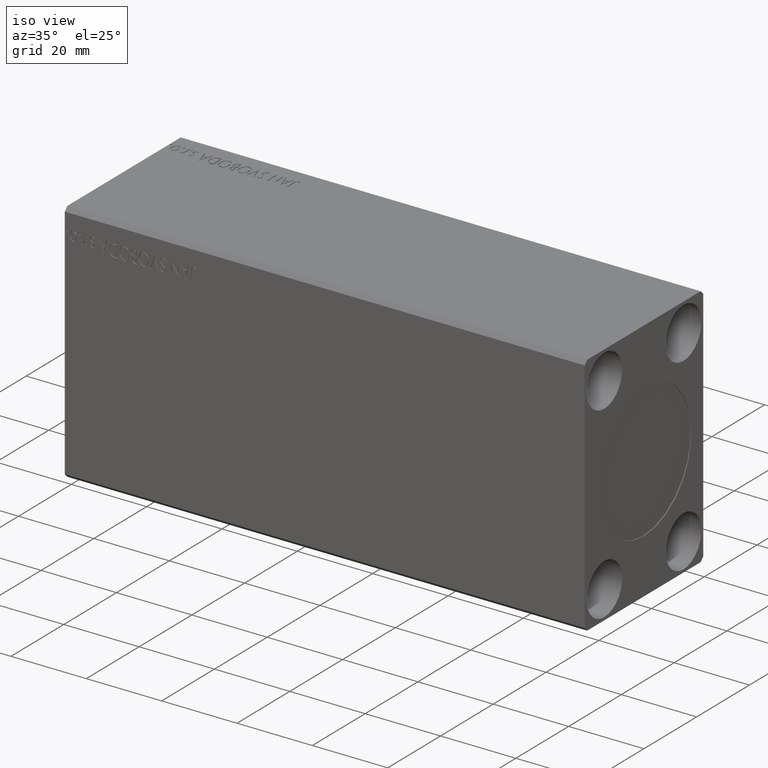
[diagram: clean part render]
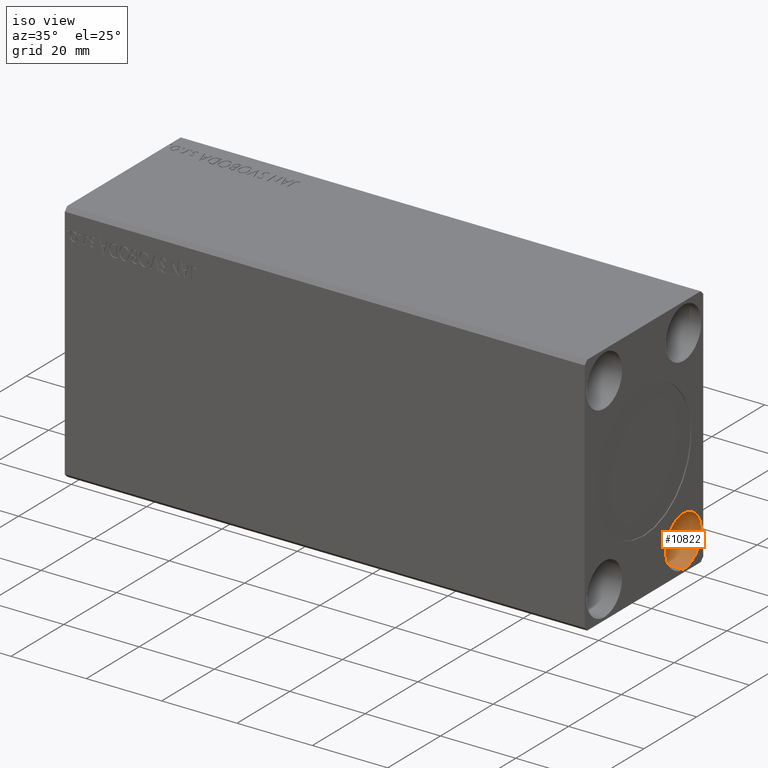
[diagram: same view with one face highlighted and labeled with its STEP entity id]
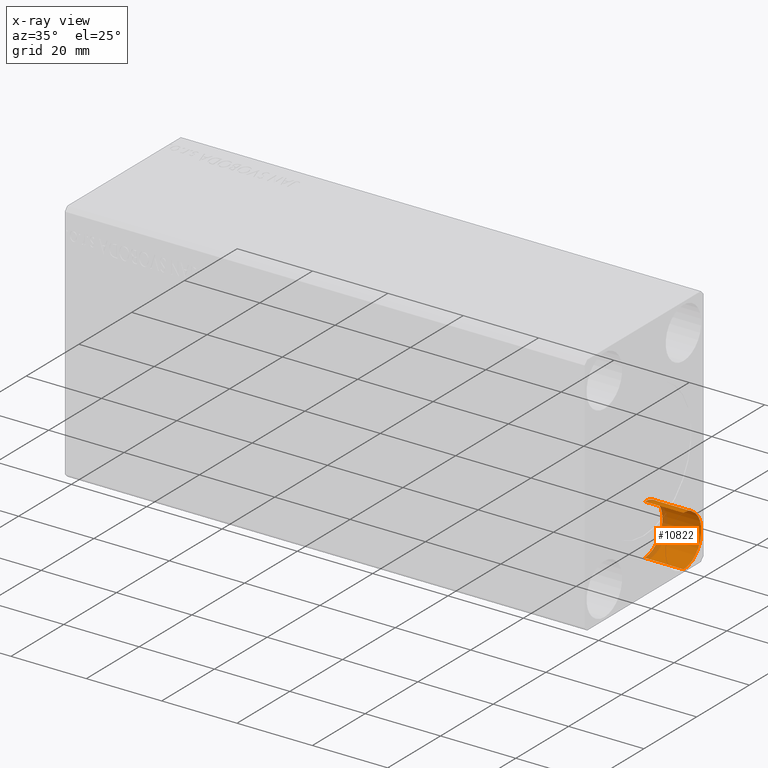
[diagram: x-ray of the same camera — body ghosted, the highlighted face saturated]
A machine part, iso view. The second image highlights one B-rep face of the part: STEP entity #10822.
The next image is the same camera in x-ray: the body ghosted, the highlighted face saturated — about 12% of this face is hidden behind the body in this view.
In plain terms, the highlighted cylindrical surface (edge-blend (fillet) strip) has radius 6.75 mm, axis along (1, -0, -0).
Its self-contained STEP definition (entity closure, byte-faithful):
#34 = DIRECTION ( 'NONE',  ( 0.000000000000000000, 0.000000000000000000, 1.000000000000000000 ) ) ;
#460 = ORIENTED_EDGE ( 'NONE', *, *, #1884, .F. ) ;
#1884 = EDGE_CURVE ( 'NONE', #23135, #21217, #27460, .T. ) ;
#3261 = CARTESIAN_POINT ( 'NONE',  ( 127.6700000000000017, 15.00000000000000000, -25.00000000000000000 ) ) ;
#3389 = CARTESIAN_POINT ( 'NONE',  ( 127.6700000000000017, 15.00000000000000000, -31.74999999999999289 ) ) ;
#4139 = CIRCLE ( 'NONE', #12371, 6.749999999999992006 ) ;
#4164 = DIRECTION ( 'NONE',  ( 0.000000000000000000, 0.000000000000000000, 1.000000000000000000 ) ) ;
#6068 = DIRECTION ( 'NONE',  ( -1.000000000000000000, -0.000000000000000000, -0.000000000000000000 ) ) ;
#6704 = FACE_OUTER_BOUND ( 'NONE', #10533, .T. ) ;
#7139 = DIRECTION ( 'NONE',  ( 1.000000000000000000, -0.000000000000000000, -0.000000000000000000 ) ) ;
#8959 = VECTOR ( 'NONE', #11961, 1000.000000000000000 ) ;
#10006 = DIRECTION ( 'NONE',  ( -1.000000000000000000, -0.000000000000000000, -0.000000000000000000 ) ) ;
#10533 = EDGE_LOOP ( 'NONE', ( #460, #41387, #22871, #31675 ) ) ;
#10822 = ADVANCED_FACE ( 'NONE', ( #6704 ), #16603, .F. ) ;
#11961 = DIRECTION ( 'NONE',  ( 1.000000000000000000, -0.000000000000000000, -0.000000000000000000 ) ) ;
#12371 = AXIS2_PLACEMENT_3D ( 'NONE', #20535, #10006, #4164 ) ;
#12820 = EDGE_CURVE ( 'NONE', #23135, #13326, #30798, .T. ) ;
#13326 = VERTEX_POINT ( 'NONE', #3389 ) ;
#13381 = DIRECTION ( 'NONE',  ( 0.000000000000000000, 0.000000000000000000, -1.000000000000000000 ) ) ;
#15001 = AXIS2_PLACEMENT_3D ( 'NONE', #3261, #6068, #34 ) ;
#16111 = EDGE_CURVE ( 'NONE', #13326, #21060, #27989, .T. ) ;
#16603 = CYLINDRICAL_SURFACE ( 'NONE', #17005, 6.749999999999992006 ) ;
#17005 = AXIS2_PLACEMENT_3D ( 'NONE', #39453, #7139, #13381 ) ;
#19810 = EDGE_CURVE ( 'NONE', #21217, #21060, #4139, .T. ) ;
#20535 = CARTESIAN_POINT ( 'NONE',  ( 138.0000000000000000, 15.00000000000000000, -25.00000000000000000 ) ) ;
#21060 = VERTEX_POINT ( 'NONE', #21163 ) ;
#21163 = CARTESIAN_POINT ( 'NONE',  ( 138.0000000000000000, 15.00000000000000000, -31.74999999999999289 ) ) ;
#21217 = VERTEX_POINT ( 'NONE', #36433 ) ;
#22871 = ORIENTED_EDGE ( 'NONE', *, *, #16111, .T. ) ;
#23135 = VERTEX_POINT ( 'NONE', #25895 ) ;
#25895 = CARTESIAN_POINT ( 'NONE',  ( 127.6700000000000017, 15.00000000000000000, -18.25000000000001066 ) ) ;
#27143 = CARTESIAN_POINT ( 'NONE',  ( 127.6700000000000017, 15.00000000000000000, -31.74999999999999289 ) ) ;
#27460 = LINE ( 'NONE', #40606, #8959 ) ;
#27989 = LINE ( 'NONE', #27143, #36378 ) ;
#30798 = CIRCLE ( 'NONE', #15001, 6.749999999999992006 ) ;
#31675 = ORIENTED_EDGE ( 'NONE', *, *, #19810, .F. ) ;
#33599 = DIRECTION ( 'NONE',  ( 1.000000000000000000, -0.000000000000000000, -0.000000000000000000 ) ) ;
#36378 = VECTOR ( 'NONE', #33599, 1000.000000000000000 ) ;
#36433 = CARTESIAN_POINT ( 'NONE',  ( 138.0000000000000000, 15.00000000000000000, -18.25000000000001066 ) ) ;
#39453 = CARTESIAN_POINT ( 'NONE',  ( 127.6700000000000017, 15.00000000000000000, -25.00000000000000000 ) ) ;
#40606 = CARTESIAN_POINT ( 'NONE',  ( 127.6700000000000017, 15.00000000000000000, -18.25000000000001066 ) ) ;
#41387 = ORIENTED_EDGE ( 'NONE', *, *, #12820, .T. ) ;